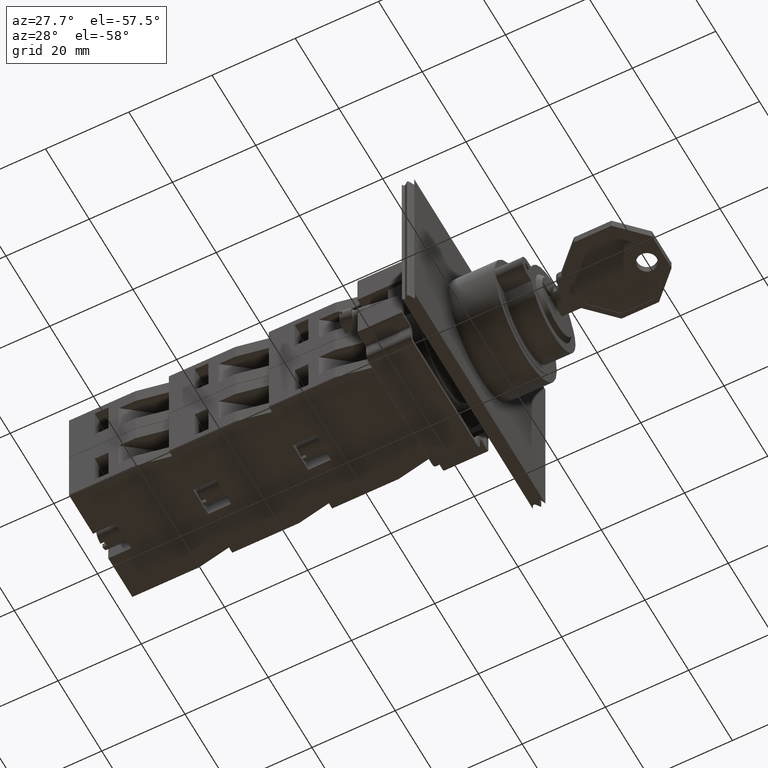
[diagram: clean part render]
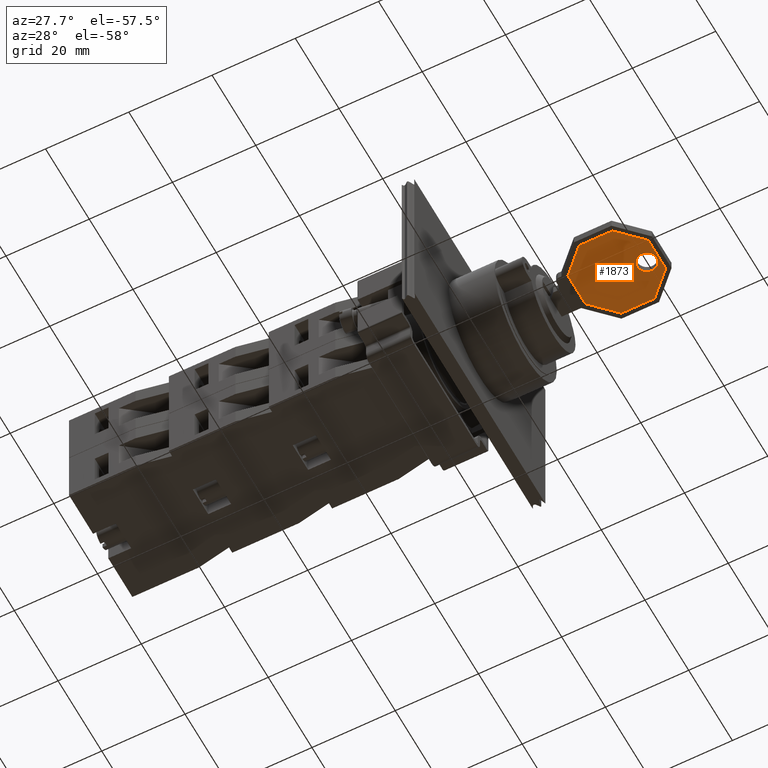
[diagram: same view with one face highlighted and labeled with its STEP entity id]
A machine part, auxiliary view. The second image highlights one B-rep face of the part: STEP entity #1873.
In plain terms, the highlighted face is a freeform B-spline surface patch.
Its self-contained STEP definition (entity closure, byte-faithful):
#1584=CARTESIAN_POINT('',(-20.975241940748042,1.024695365250598,0.100000000000000));
#1585=VERTEX_POINT('',#1584);
#1586=CARTESIAN_POINT('',(-18.625241940748044,1.024695365250598,0.100000000000000));
#1587=DIRECTION('',(0.0,0.0,1.0));
#1588=DIRECTION('',(1.0,0.0,0.0));
#1589=AXIS2_PLACEMENT_3D('',#1586,#1587,#1588);
#1590=CIRCLE('',#1589,2.350000000000000);
#1591=EDGE_CURVE('',#1585,#1585,#1590,.T.);
#1612=CARTESIAN_POINT('',(-21.422893560755053,-9.466035264037716,0.100000000000000));
#1613=VERTEX_POINT('',#1612);
#1614=CARTESIAN_POINT('',(-15.766039311262682,-3.809181014545335,0.100000000000000));
#1615=VERTEX_POINT('',#1614);
#1616=CARTESIAN_POINT('',(-21.422893560755053,-9.466035264037716,0.100000000000000));
#1617=DIRECTION('',(0.707106781186547,0.707106781186548,0.0));
#1618=VECTOR('',#1617,7.999999999999994);
#1619=LINE('',#1616,#1618);
#1620=EDGE_CURVE('',#1613,#1615,#1619,.T.);
#1652=CARTESIAN_POINT('',(-15.766039311262690,4.190818985454659,0.100000000000000));
#1653=VERTEX_POINT('',#1652);
#1654=CARTESIAN_POINT('',(-15.766039311262682,-3.809181014545335,0.100000000000000));
#1655=DIRECTION('',(0.0,1.0,0.0));
#1656=VECTOR('',#1655,7.999999999999994);
#1657=LINE('',#1654,#1656);
#1658=EDGE_CURVE('',#1615,#1653,#1657,.T.);
#1683=CARTESIAN_POINT('',(-21.422893560755071,9.847673234947029,0.100000000000000));
#1684=VERTEX_POINT('',#1683);
#1685=CARTESIAN_POINT('',(-15.766039311262690,4.190818985454659,0.100000000000000));
#1686=DIRECTION('',(-0.707106781186548,0.707106781186547,0.0));
#1687=VECTOR('',#1686,7.999999999999994);
#1688=LINE('',#1685,#1687);
#1689=EDGE_CURVE('',#1653,#1684,#1688,.T.);
#1714=CARTESIAN_POINT('',(-29.422893560755064,9.847673234947020,0.100000000000000));
#1715=VERTEX_POINT('',#1714);
#1716=CARTESIAN_POINT('',(-21.422893560755071,9.847673234947029,0.100000000000000));
#1717=DIRECTION('',(-1.0,0.0,0.0));
#1718=VECTOR('',#1717,7.999999999999993);
#1719=LINE('',#1716,#1718);
#1720=EDGE_CURVE('',#1684,#1715,#1719,.T.);
#1745=CARTESIAN_POINT('',(-35.079747810247433,4.190818985454636,0.100000000000000));
#1746=VERTEX_POINT('',#1745);
#1747=CARTESIAN_POINT('',(-29.422893560755064,9.847673234947020,0.100000000000000));
#1748=DIRECTION('',(-0.707106781186547,-0.707106781186548,0.0));
#1749=VECTOR('',#1748,7.999999999999995);
#1750=LINE('',#1747,#1749);
#1751=EDGE_CURVE('',#1715,#1746,#1750,.T.);
#1776=CARTESIAN_POINT('',(-35.079747810247426,-3.809181014545360,0.100000000000000));
#1777=VERTEX_POINT('',#1776);
#1778=CARTESIAN_POINT('',(-35.079747810247433,4.190818985454636,0.100000000000000));
#1779=DIRECTION('',(0.0,-1.0,0.0));
#1780=VECTOR('',#1779,7.999999999999996);
#1781=LINE('',#1778,#1780);
#1782=EDGE_CURVE('',#1746,#1777,#1781,.T.);
#1807=CARTESIAN_POINT('',(-29.422893560755039,-9.466035264037728,0.100000000000000));
#1808=VERTEX_POINT('',#1807);
#1809=CARTESIAN_POINT('',(-35.079747810247426,-3.809181014545360,0.100000000000000));
#1810=DIRECTION('',(0.707106781186549,-0.707106781186546,0.0));
#1811=VECTOR('',#1810,7.999999999999996);
#1812=LINE('',#1809,#1811);
#1813=EDGE_CURVE('',#1777,#1808,#1812,.T.);
#1838=CARTESIAN_POINT('',(-29.422893560755039,-9.466035264037728,0.100000000000000));
#1839=DIRECTION('',(1.0,0.0,0.0));
#1840=VECTOR('',#1839,7.999999999999986);
#1841=LINE('',#1838,#1840);
#1842=EDGE_CURVE('',#1808,#1613,#1841,.T.);
#1855=CARTESIAN_POINT('',(-35.079747810247433,9.847673234947029,0.100000000000000));
#1856=CARTESIAN_POINT('',(-15.766039311262681,9.847673234947029,0.100000000000000));
#1857=CARTESIAN_POINT('',(-35.079747810247433,-9.466035264037730,0.100000000000000));
#1858=CARTESIAN_POINT('',(-15.766039311262681,-9.466035264037730,0.100000000000000));
#1859=B_SPLINE_SURFACE_WITH_KNOTS('',1,1,((#1855,#1857),(#1856,#1858)),.UNSPECIFIED.,.F.,.F.,.U.,(2,2),(2,2),(0.0,19.313708498984752),(0.0,19.313708498984759),.UNSPECIFIED.);
#1860=ORIENTED_EDGE('',*,*,#1620,.F.);
#1861=ORIENTED_EDGE('',*,*,#1842,.F.);
#1862=ORIENTED_EDGE('',*,*,#1813,.F.);
#1863=ORIENTED_EDGE('',*,*,#1782,.F.);
#1864=ORIENTED_EDGE('',*,*,#1751,.F.);
#1865=ORIENTED_EDGE('',*,*,#1720,.F.);
#1866=ORIENTED_EDGE('',*,*,#1689,.F.);
#1867=ORIENTED_EDGE('',*,*,#1658,.F.);
#1868=EDGE_LOOP('',(#1860,#1861,#1862,#1863,#1864,#1865,#1866,#1867));
#1869=FACE_OUTER_BOUND('',#1868,.T.);
#1870=ORIENTED_EDGE('',*,*,#1591,.T.);
#1871=EDGE_LOOP('',(#1870));
#1872=FACE_BOUND('',#1871,.T.);
#1873=ADVANCED_FACE('',(#1869,#1872),#1859,.T.);